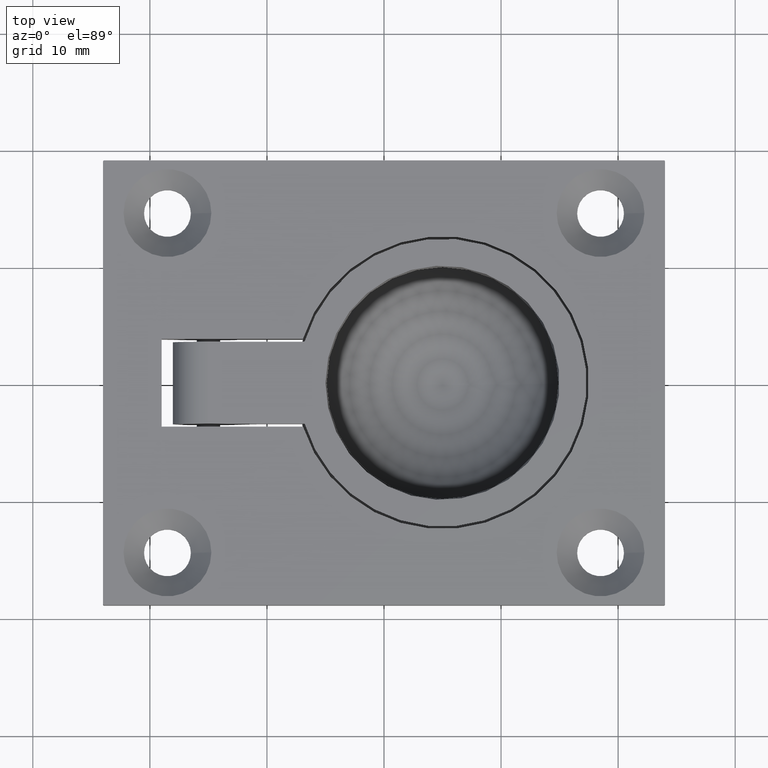
[diagram: clean part render]
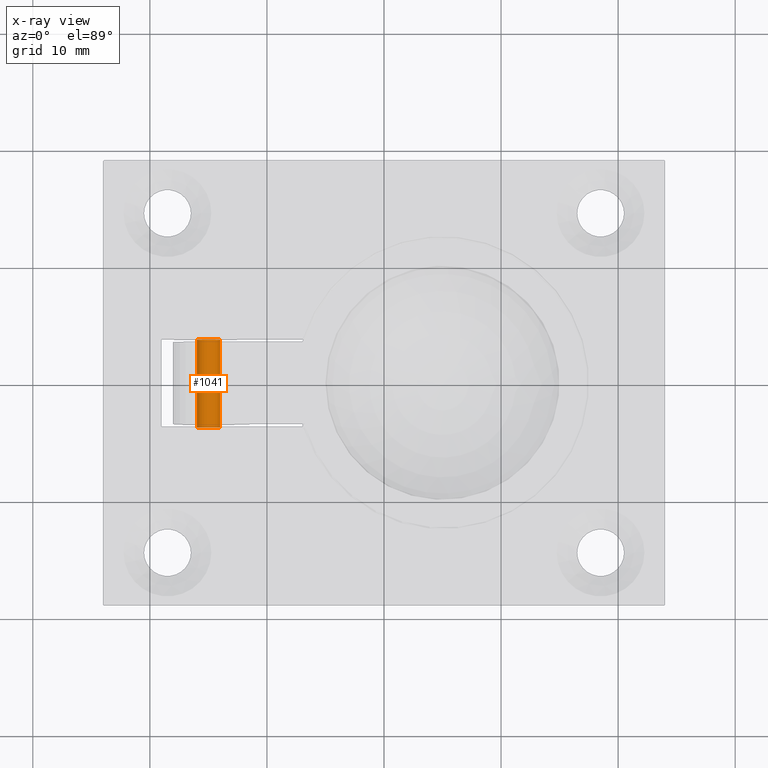
[diagram: x-ray — body ghosted, one internal face saturated and labeled with its STEP entity id]
A machine part, top view, then the same camera in x-ray: the body is ghosted and one INTERNAL B-rep face — a face not visible from any outside direction — is saturated and labeled: STEP entity #1041.
In plain terms, the highlighted cylindrical surface (bore or boss wall) has radius 1 mm, axis along (-0, -1, 0).
Its self-contained STEP definition (entity closure, byte-faithful):
#57=FACE_BOUND('',#206,.T.);
#132=FACE_OUTER_BOUND('',#205,.T.);
#205=EDGE_LOOP('',(#838));
#206=EDGE_LOOP('',(#839));
#432=CIRCLE('',#1148,1.);
#433=CIRCLE('',#1149,1.);
#520=VERTEX_POINT('',#1860);
#521=VERTEX_POINT('',#1862);
#645=EDGE_CURVE('',#520,#520,#432,.T.);
#646=EDGE_CURVE('',#521,#521,#433,.T.);
#838=ORIENTED_EDGE('',*,*,#645,.F.);
#839=ORIENTED_EDGE('',*,*,#646,.F.);
#996=CYLINDRICAL_SURFACE('',#1147,1.);
#1041=ADVANCED_FACE('',(#132,#57),#996,.T.);
#1147=AXIS2_PLACEMENT_3D('',#1859,#1389,#1390);
#1148=AXIS2_PLACEMENT_3D('',#1861,#1391,#1392);
#1149=AXIS2_PLACEMENT_3D('',#1863,#1393,#1394);
#1389=DIRECTION('center_axis',(-3.94745964311167E-16,-1.,0.));
#1390=DIRECTION('ref_axis',(-1.,3.94745964311167E-16,0.));
#1391=DIRECTION('center_axis',(-7.9075128522048E-17,-1.,0.));
#1392=DIRECTION('ref_axis',(-1.,3.94745964311167E-16,0.));
#1393=DIRECTION('center_axis',(3.54889576536967E-16,1.,0.));
#1394=DIRECTION('ref_axis',(-1.,3.94745964311167E-16,0.));
#1859=CARTESIAN_POINT('Origin',(-15.,3.75,-2.));
#1860=CARTESIAN_POINT('',(-14.,-3.74999999999999,-2.));
#1861=CARTESIAN_POINT('Origin',(-15.,-3.74999999999999,-2.));
#1862=CARTESIAN_POINT('',(-14.,3.75,-2.));
#1863=CARTESIAN_POINT('Origin',(-15.,3.75,-2.));